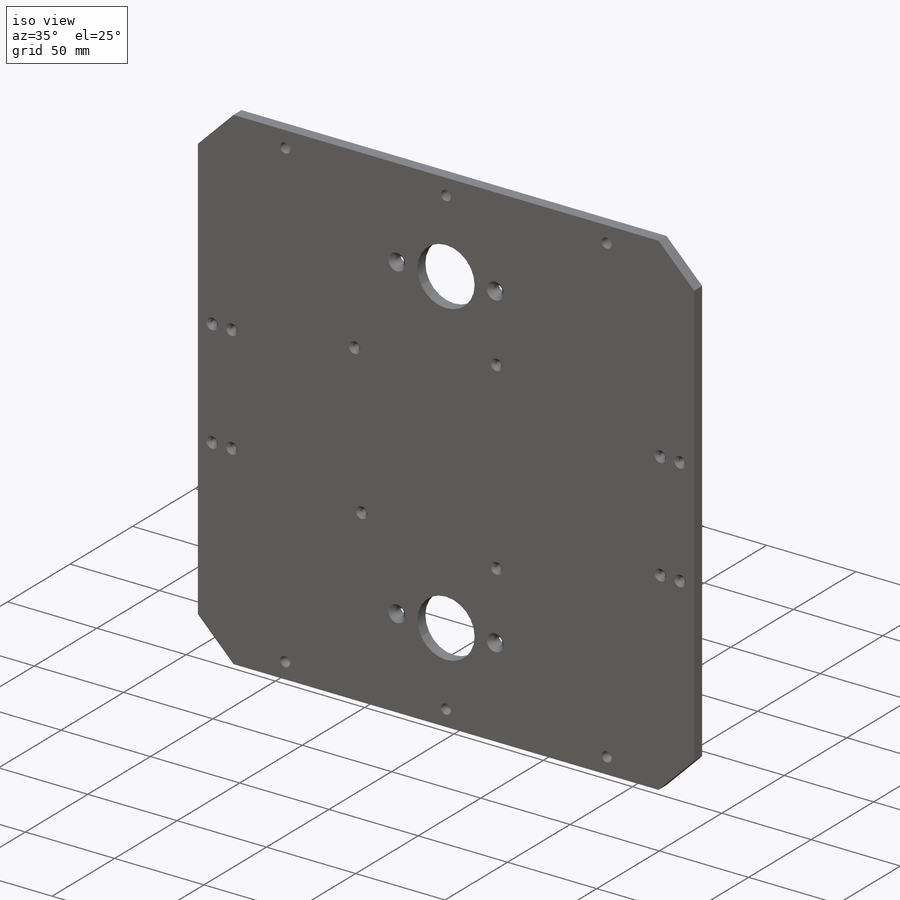
[diagram: iso view]
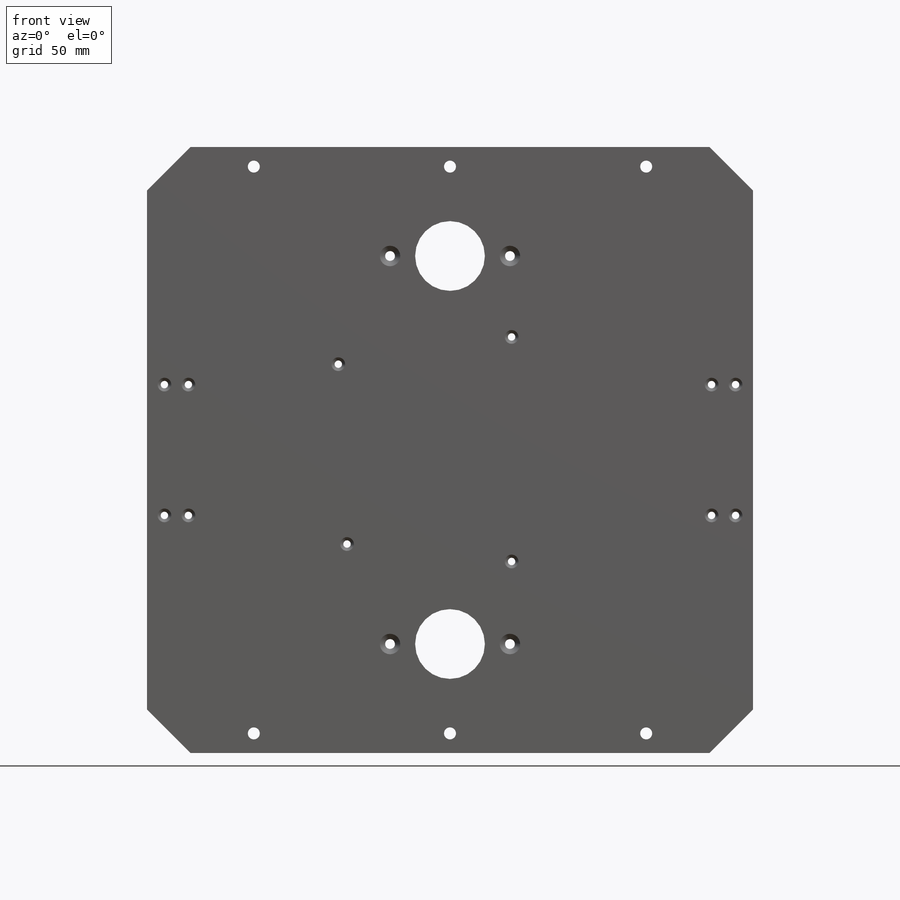
[diagram: front view]
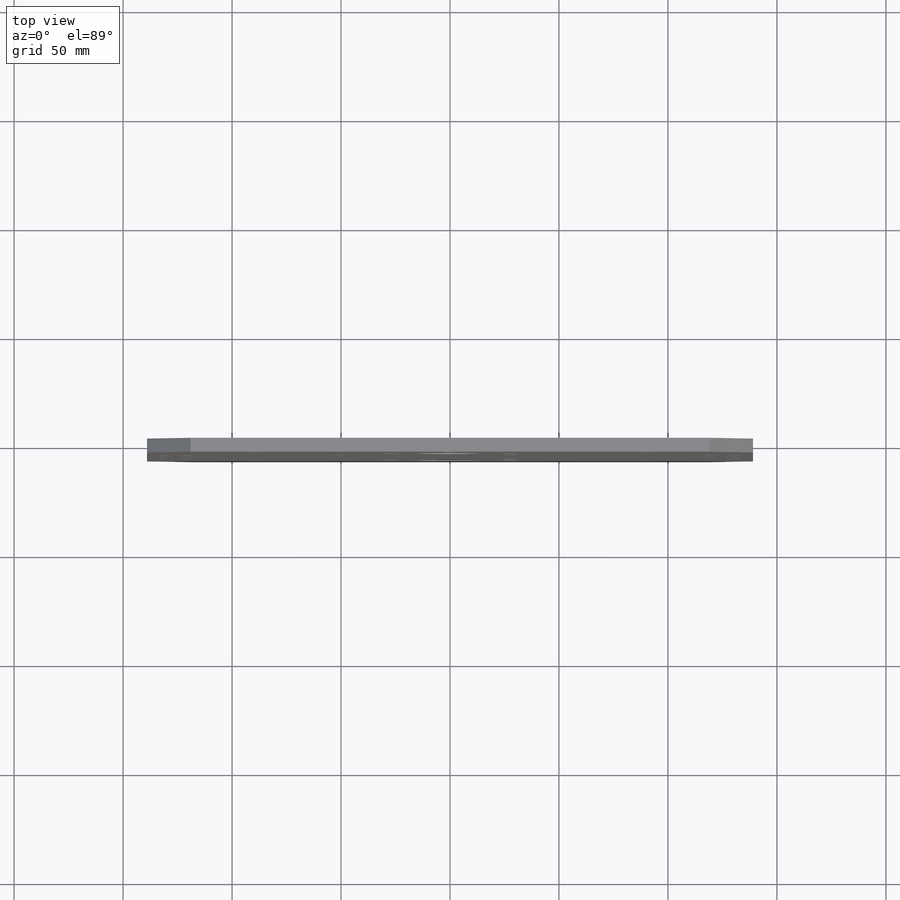
[diagram: top view]
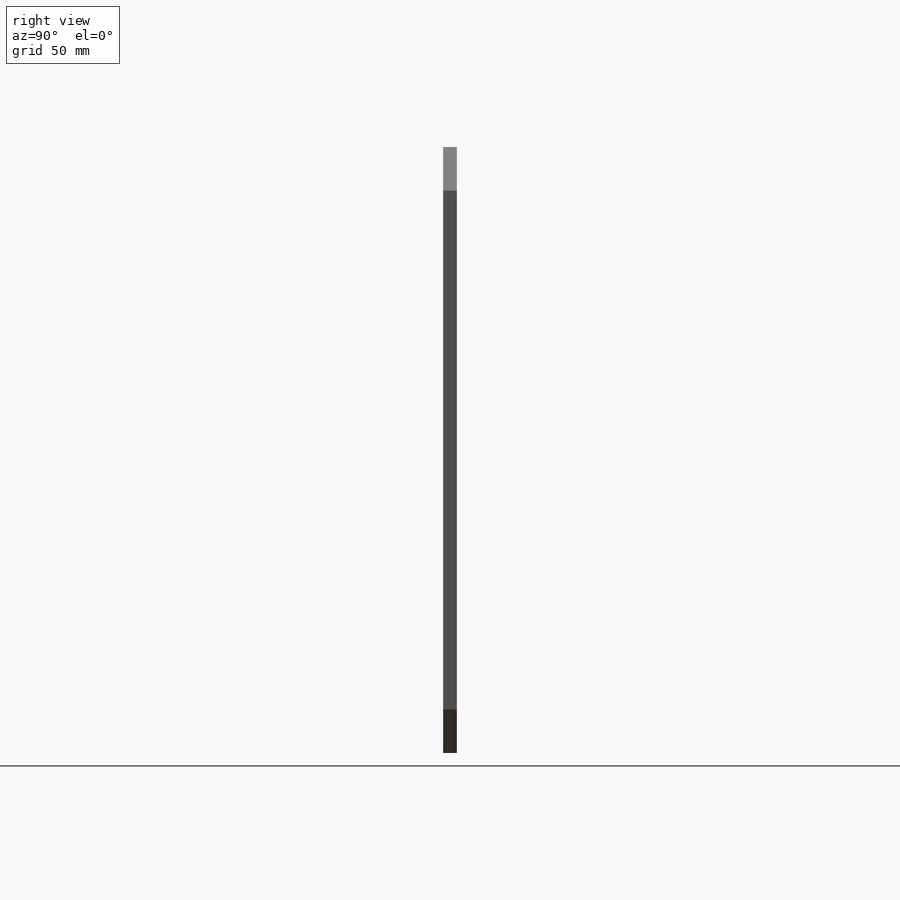
[diagram: right view]
SOLIDWORKS PART (.sldprt)
format: sldprt  version: not decoded by parser v0  size: 747,520 bytes
history: native  units: mm
features: sketch x10, hole x3, cut_extrude x2, material x1, extrude x1, chamfer x1 (+13 scaffold rows collapsed)
feature tree (31):
  scaffold x13  (default folders/planes/origin — collapsed)
  material  "Material <not specified>"
  sketch  "Sketch1"  dims[D1=278.0mm D2=278.0mm]
  extrude  "Boss-Extrude1"  Depth=6.35mm
  chamfer  "Chamfer1"  Distance=20mm Angle=45deg
  sketch  "Sketch4"  dims[c1.D1=5.5mm c1.D2=85.0mm c1.D3=90.0mm c1.D4=~93.292305mm c2.D2=9.0mm]
  cut_extrude  "Cut-Extrude2"  Depth=76.2mm
  sketch  "Sketch8"  dims[c1.D3=32.0mm c1.D1=40.0mm c1.D2=~43.528632mm c2.D1=50.0mm c2.D2=105.0mm]
  cut_extrude  "Cut-Extrude4"  Depth=105mm
  hole  "CSK for M4 Flat Head Machine Screw2"  Diameter=4.5mm Depth=6.35mm
  sketch  "Sketch10"  dims[c1.D1=40.0mm c1.D2=40.0mm c1.D3=20.0mm c1.D4=20.0mm c2.D1=40.0mm c2.D2=20.0mm c2.D3=55.0mm]
  sketch  "Sketch9"  dims[hole-wizard template sketch: 55 standard entries collapsed; hole parameters kept: c17.Thru Hole Depth=6.35mm c17.Near C'Sink Dia.=9.4mm c17.D4=~3.666174mm c17.Near C'Sink Angle=90.0deg]
  hole  "CSK for M3 Flat Head Machine Screw1"  Diameter=3.4mm Depth=6.35mm
  sketch  "Sketch12"  dims[D1=11.0mm D2=60.0mm D3=8.0mm]
  sketch  "Sketch11"  dims[hole-wizard template sketch: 55 standard entries collapsed; hole parameters kept: c17.Thru Hole Depth=6.35mm c17.Near C'Sink Dia.=6.3mm c17.D4=~3.666174mm c17.Near C'Sink Angle=90.0deg]
  sketch  "Sketch23"
  hole  "CSK for M3 Flat Head Machine Screw2"  Diameter=3.4mm Depth=6.35mm
  sketch  "Sketch25"
  sketch  "Sketch24"  dims[hole-wizard template sketch: 55 standard entries collapsed; hole parameters kept: c17.Thru Hole Depth=6.35mm c17.Near C'Sink Dia.=6.3mm c17.D4=~3.666174mm c17.Near C'Sink Angle=90.0deg]
decode coverage: 15 of 17 modeling features carry decoded parameters
note: ~ marks probable driven/reference dimensions
note: suppression state not decoded; provenance and decode notes live in map.json
